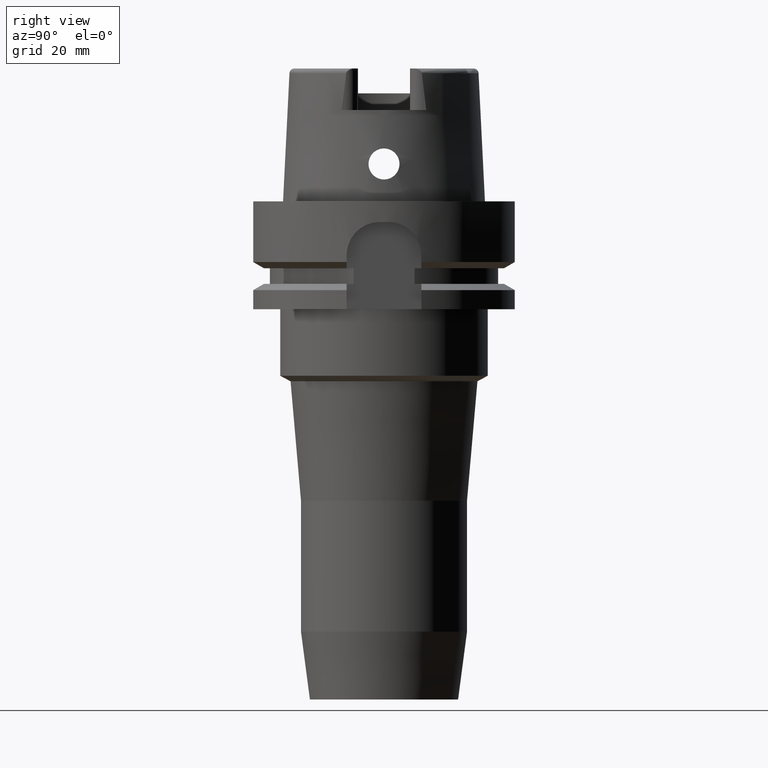
[diagram: clean part render]
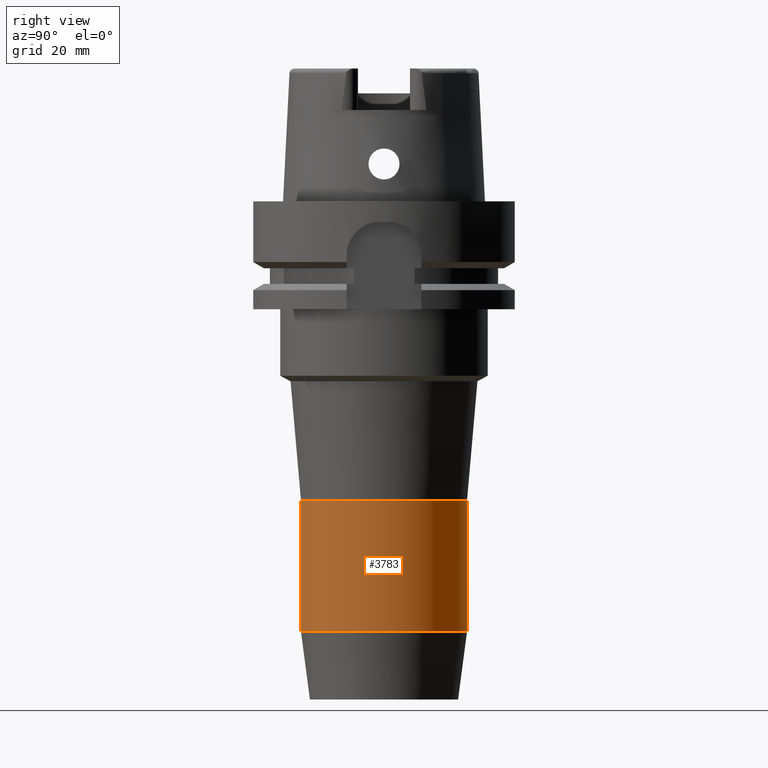
[diagram: same view with one face highlighted and labeled with its STEP entity id]
A machine part, right view. The second image highlights one B-rep face of the part: STEP entity #3783.
In plain terms, the highlighted cylindrical surface (partial cylindrical patch) has radius 20 mm, axis along (0, 0, 1).
Its self-contained STEP definition (entity closure, byte-faithful):
#1687=CARTESIAN_POINT('',(0.E0,0.E0,-7.2087E1));
#1688=DIRECTION('',(0.E0,0.E0,-1.E0));
#1689=DIRECTION('',(0.E0,1.E0,0.E0));
#1690=AXIS2_PLACEMENT_3D('',#1687,#1688,#1689);
#1703=DIRECTION('',(0.E0,1.693090266361E-13,-1.E0));
#1704=VECTOR('',#1703,3.155934139530E1);
#1705=CARTESIAN_POINT('',(0.E0,2.E1,-7.2087E1));
#1706=LINE('',#1705,#1704);
#1710=DIRECTION('',(0.E0,-1.693090266361E-13,-1.E0));
#1711=VECTOR('',#1710,3.155934139530E1);
#1712=CARTESIAN_POINT('',(0.E0,-2.E1,-7.2087E1));
#1713=LINE('',#1712,#1711);
#1739=CARTESIAN_POINT('',(0.E0,0.E0,-1.036463413953E2));
#1740=DIRECTION('',(0.E0,0.E0,1.E0));
#1741=DIRECTION('',(0.E0,-1.E0,0.E0));
#1742=AXIS2_PLACEMENT_3D('',#1739,#1740,#1741);
#2468=CARTESIAN_POINT('',(0.E0,2.E1,-1.036463413953E2));
#2469=VERTEX_POINT('',#2468);
#2470=CARTESIAN_POINT('',(0.E0,-2.E1,-1.036463413953E2));
#2471=VERTEX_POINT('',#2470);
#2472=CARTESIAN_POINT('',(0.E0,2.E1,-7.2087E1));
#2473=VERTEX_POINT('',#2472);
#2474=CARTESIAN_POINT('',(0.E0,-2.E1,-7.2087E1));
#2475=VERTEX_POINT('',#2474);
#3769=CARTESIAN_POINT('',(0.E0,0.E0,-1.276E2));
#3770=DIRECTION('',(0.E0,0.E0,1.E0));
#3771=DIRECTION('',(0.E0,1.E0,0.E0));
#3772=AXIS2_PLACEMENT_3D('',#3769,#3770,#3771);
#3773=CYLINDRICAL_SURFACE('',#3772,2.E1);
#3775=ORIENTED_EDGE('',*,*,#3774,.T.);
#3777=ORIENTED_EDGE('',*,*,#3776,.F.);
#3779=ORIENTED_EDGE('',*,*,#3778,.F.);
#3780=ORIENTED_EDGE('',*,*,#3762,.F.);
#3781=EDGE_LOOP('',(#3775,#3777,#3779,#3780));
#3782=FACE_OUTER_BOUND('',#3781,.F.);
#1691=CIRCLE('',#1690,2.E1);
#1743=CIRCLE('',#1742,2.000000000001E1);
#3762=EDGE_CURVE('',#2473,#2475,#1691,.T.);
#3774=EDGE_CURVE('',#2473,#2469,#1706,.T.);
#3776=EDGE_CURVE('',#2471,#2469,#1743,.T.);
#3778=EDGE_CURVE('',#2475,#2471,#1713,.T.);
#3783=ADVANCED_FACE('',(#3782),#3773,.T.);